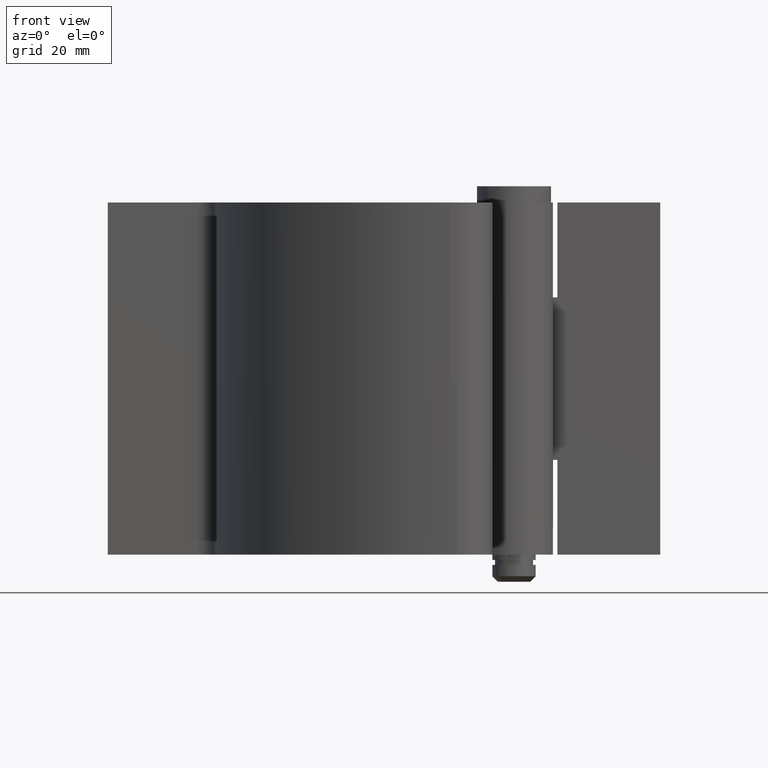
[diagram: clean part render]
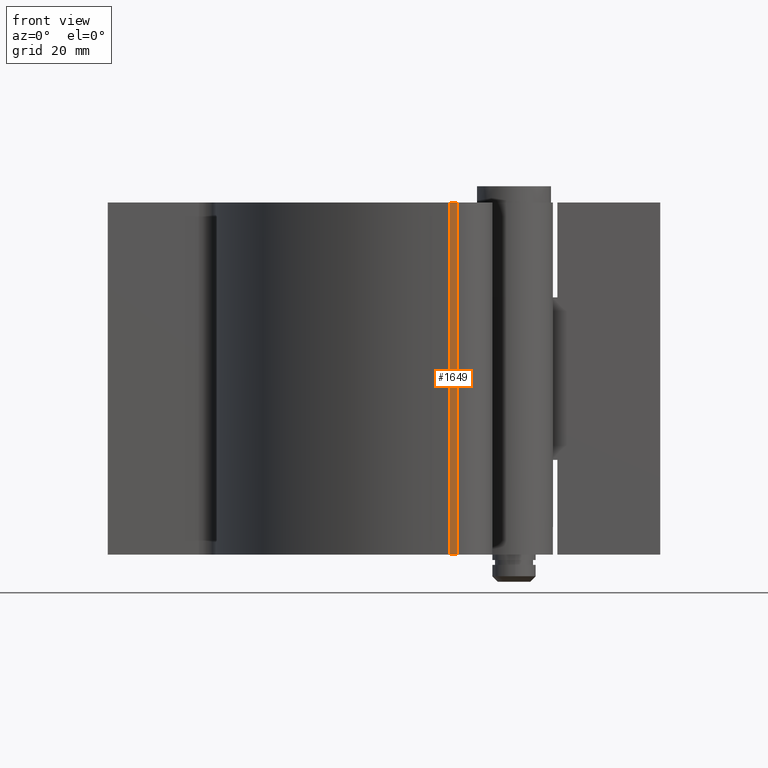
[diagram: same view with one face highlighted and labeled with its STEP entity id]
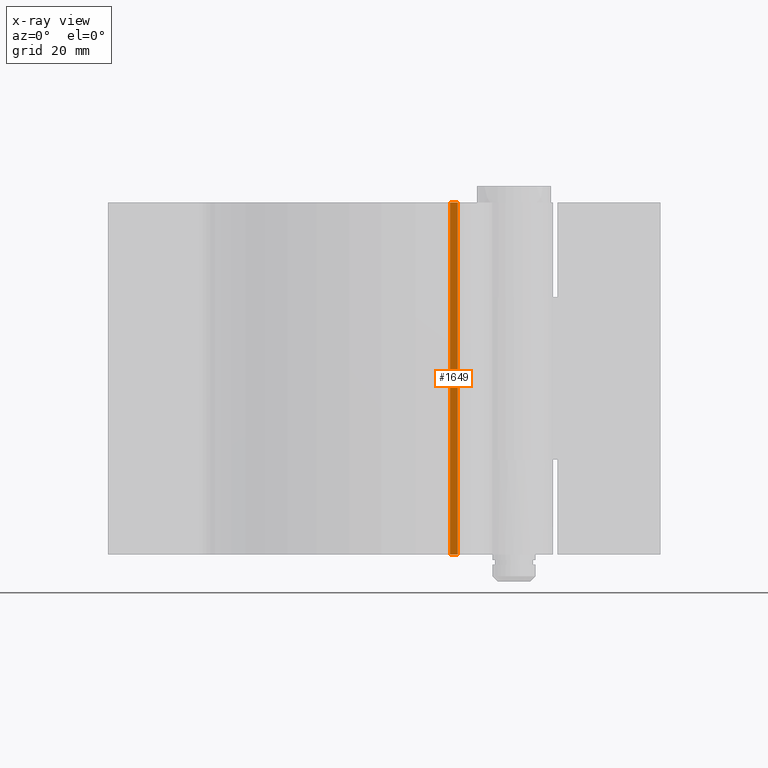
[diagram: x-ray of the same camera — body ghosted, the highlighted face saturated]
A machine part, front view. The second image highlights one B-rep face of the part: STEP entity #1649.
The next image is the same camera in x-ray: the body ghosted, the highlighted face saturated — about 0% of this face is hidden behind the body in this view.
In plain terms, the highlighted face is a freeform B-spline surface patch.
Its self-contained STEP definition (entity closure, byte-faithful):
#1296=CARTESIAN_POINT('',(-10.400000000000000,-42.799999999999997,5.0));
#1297=VERTEX_POINT('',#1296);
#1311=CARTESIAN_POINT('',(-11.801724169965100,-42.799999999999997,5.0));
#1312=VERTEX_POINT('',#1311);
#1313=CARTESIAN_POINT('',(-10.400000000000000,-42.799999999999997,5.0));
#1314=CARTESIAN_POINT('',(-11.801724169965100,-42.799999999999997,5.0));
#1315=QUASI_UNIFORM_CURVE('',1,(#1313,#1314),.UNSPECIFIED.,.F.,.U.);
#1316=EDGE_CURVE('',#1297,#1312,#1315,.T.);
#1398=CARTESIAN_POINT('',(-11.801724169965100,-42.799999999999997,70.0));
#1399=VERTEX_POINT('',#1398);
#1415=CARTESIAN_POINT('',(-10.400000000000000,-42.799999999999997,70.0));
#1416=VERTEX_POINT('',#1415);
#1417=CARTESIAN_POINT('',(-10.400000000000000,-42.799999999999997,70.0));
#1418=CARTESIAN_POINT('',(-11.801724169965100,-42.799999999999997,70.0));
#1419=QUASI_UNIFORM_CURVE('',1,(#1417,#1418),.UNSPECIFIED.,.F.,.U.);
#1420=EDGE_CURVE('',#1416,#1399,#1419,.T.);
#1624=CARTESIAN_POINT('',(-11.801724169965100,-42.799999999999997,70.0));
#1625=CARTESIAN_POINT('',(-11.801724169965100,-42.799999999999997,5.0));
#1626=QUASI_UNIFORM_CURVE('',1,(#1624,#1625),.UNSPECIFIED.,.F.,.U.);
#1627=EDGE_CURVE('',#1399,#1312,#1626,.T.);
#1634=CARTESIAN_POINT('',(-11.871740580887931,-42.799999999999997,73.246749874017397));
#1635=CARTESIAN_POINT('',(-11.871740580887931,-42.799999999999997,1.753248382546753));
#1636=CARTESIAN_POINT('',(-10.329983513882830,-42.799999999999997,73.246749874017397));
#1637=CARTESIAN_POINT('',(-10.329983513882830,-42.799999999999997,1.753248382546753));
#1638=B_SPLINE_SURFACE_WITH_KNOTS('',1,1,((#1634,#1636),(#1635,#1637)),.UNSPECIFIED.,.F.,.F.,.U.,(2,2),(2,2),(0.0,71.493501491470639),(0.041708161739260,0.958291882964224),.UNSPECIFIED.);
#1639=ORIENTED_EDGE('',*,*,#1316,.F.);
#1640=CARTESIAN_POINT('',(-10.400000000000000,-42.799999999999997,70.0));
#1641=CARTESIAN_POINT('',(-10.400000000000000,-42.799999999999997,5.0));
#1642=QUASI_UNIFORM_CURVE('',1,(#1640,#1641),.UNSPECIFIED.,.F.,.U.);
#1643=EDGE_CURVE('',#1416,#1297,#1642,.T.);
#1644=ORIENTED_EDGE('',*,*,#1643,.F.);
#1645=ORIENTED_EDGE('',*,*,#1420,.T.);
#1646=ORIENTED_EDGE('',*,*,#1627,.T.);
#1647=EDGE_LOOP('',(#1639,#1644,#1645,#1646));
#1648=FACE_OUTER_BOUND('',#1647,.T.);
#1649=ADVANCED_FACE('',(#1648),#1638,.T.);